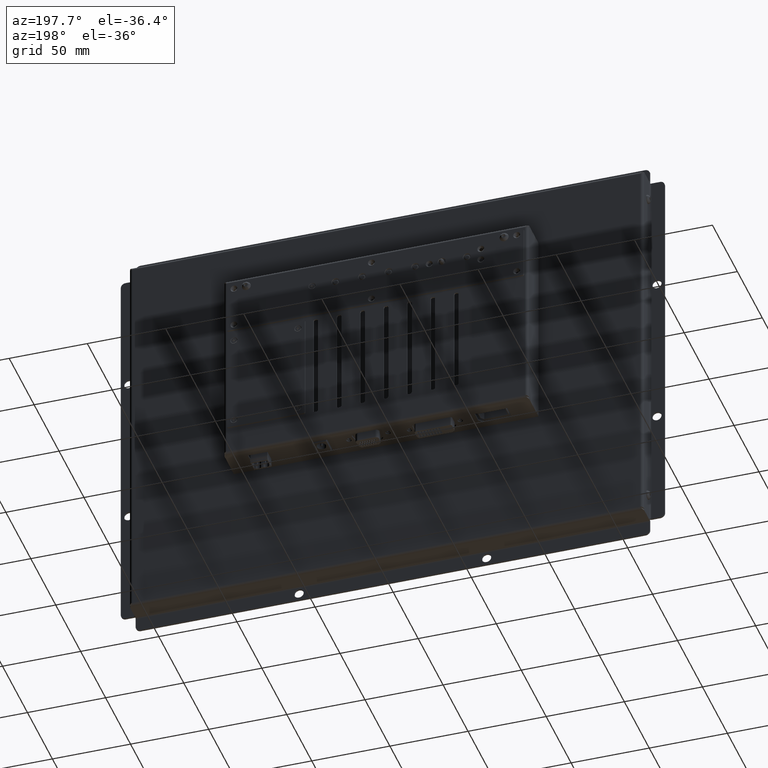
[diagram: clean part render]
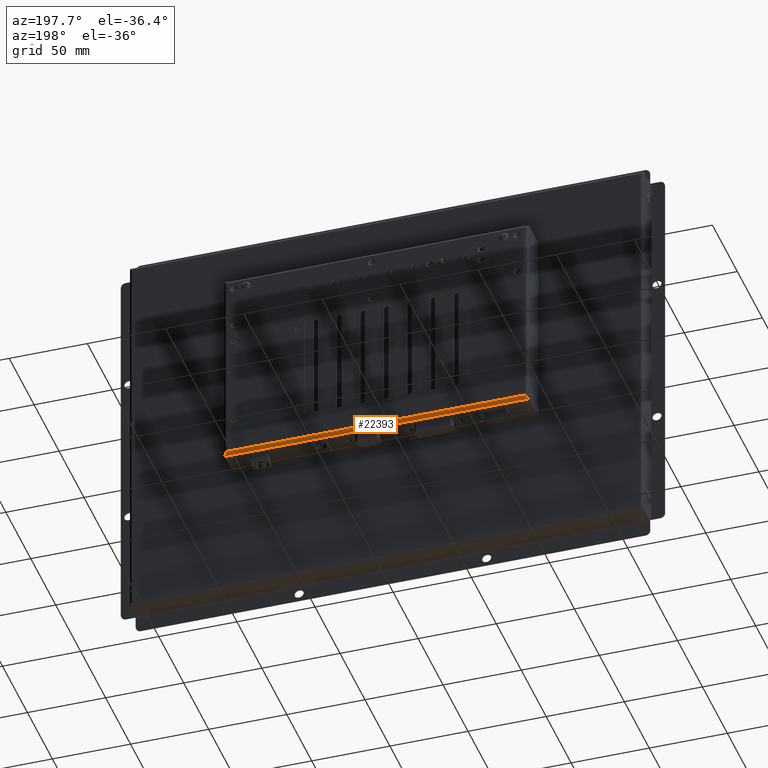
[diagram: same view with one face highlighted and labeled with its STEP entity id]
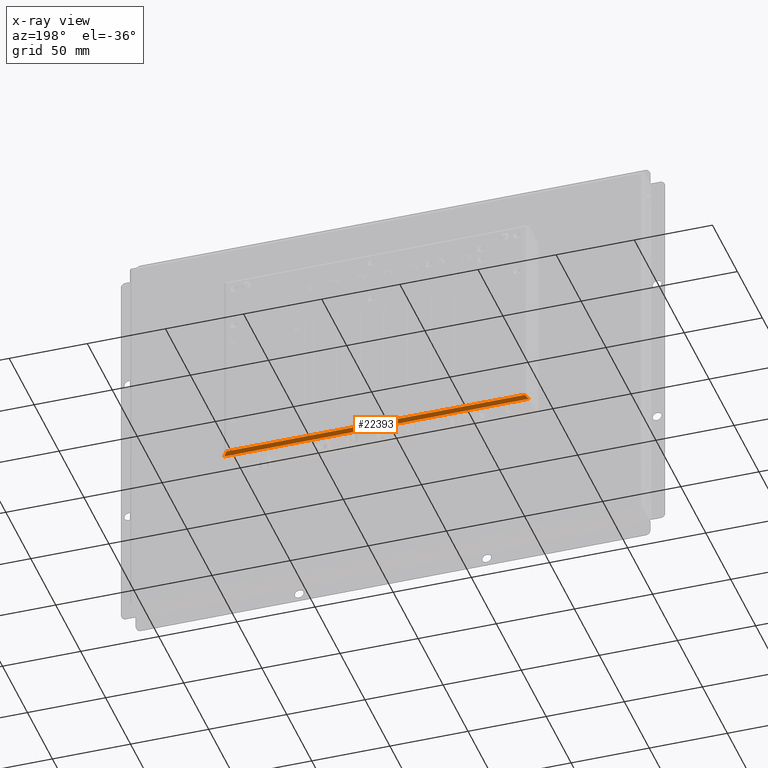
[diagram: x-ray of the same camera — body ghosted, the highlighted face saturated]
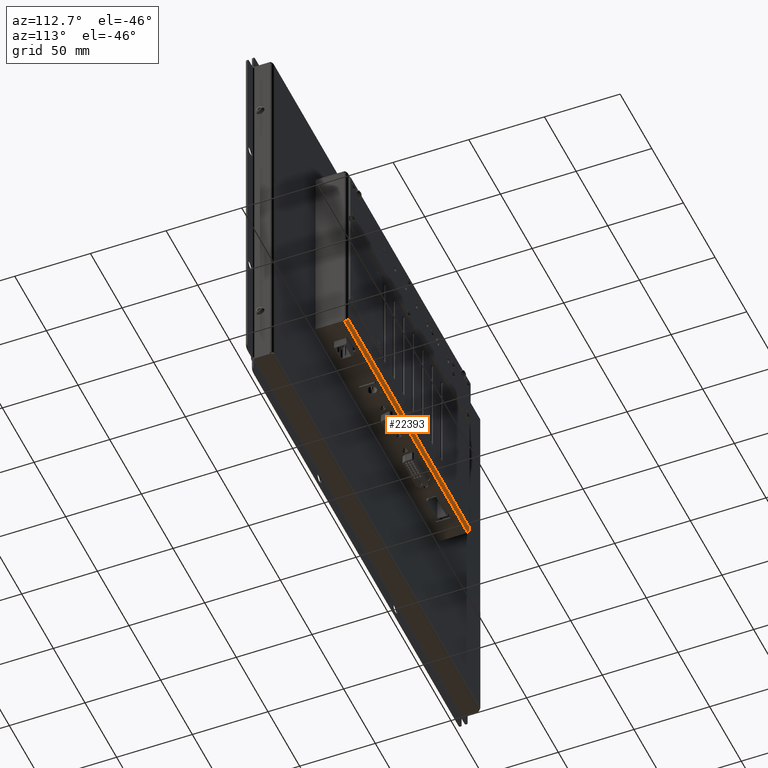
[diagram: same view with one face highlighted and labeled with its STEP entity id]
A machine part, auxiliary view. The second image highlights one B-rep face of the part: STEP entity #22393.
The next image is the same camera in x-ray: the body ghosted, the highlighted face saturated — about 0% of this face is hidden behind the body in this view.
A second angle (auxiliary view) of the same face is appended — the face is thin or edge-on in the first view.
In plain terms, the highlighted cylindrical surface (edge-blend (fillet) strip) has radius 2 mm, axis along (-1, 0, 0).
Its self-contained STEP definition (entity closure, byte-faithful):
#1341=B_SPLINE_CURVE_WITH_KNOTS('',3,(#38212,#38213,#38214,#38215,#38216,
#38217,#38218),.UNSPECIFIED.,.F.,.F.,(4,3,4),(-0.999999999999989,-0.571428571428568,
0.),.UNSPECIFIED.);
#1342=B_SPLINE_CURVE_WITH_KNOTS('',3,(#38220,#38221,#38222,#38223,#38224,
#38225,#38226),.UNSPECIFIED.,.F.,.F.,(4,3,4),(-0.999999999999989,-0.571428571428568,
0.),.UNSPECIFIED.);
#3203=FACE_OUTER_BOUND('',#4588,.T.);
#4588=EDGE_LOOP('',(#19381,#19382,#19383,#19384));
#6494=LINE('',#37762,#8346);
#6546=LINE('',#38227,#8398);
#8346=VECTOR('',#29070,10.);
#8398=VECTOR('',#29202,10.);
#11167=VERTEX_POINT('',#37759);
#11168=VERTEX_POINT('',#37761);
#11217=VERTEX_POINT('',#38211);
#11218=VERTEX_POINT('',#38219);
#13982=EDGE_CURVE('',#11167,#11168,#6494,.T.);
#14063=EDGE_CURVE('',#11168,#11217,#1341,.T.);
#14064=EDGE_CURVE('',#11167,#11218,#1342,.T.);
#14065=EDGE_CURVE('',#11217,#11218,#6546,.T.);
#19381=ORIENTED_EDGE('',*,*,#14063,.F.);
#19382=ORIENTED_EDGE('',*,*,#13982,.F.);
#19383=ORIENTED_EDGE('',*,*,#14064,.T.);
#19384=ORIENTED_EDGE('',*,*,#14065,.F.);
#21438=CYLINDRICAL_SURFACE('',#24404,2.);
#22393=ADVANCED_FACE('',(#3203),#21438,.T.);
#24404=AXIS2_PLACEMENT_3D('',#38210,#29200,#29201);
#29070=DIRECTION('',(-1.,-1.8256851286041E-19,3.35485923723702E-34));
#29200=DIRECTION('center_axis',(1.,0.,0.));
#29201=DIRECTION('ref_axis',(0.,0.,1.));
#29202=DIRECTION('',(1.,0.,0.));
#37759=CARTESIAN_POINT('',(-26.67547,-29.218324,-0.999999999999996));
#37761=CARTESIAN_POINT('',(-221.67547,-29.218324,-0.999999999999996));
#37762=CARTESIAN_POINT('',(-124.17547,-29.218324,-0.999999999999996));
#38210=CARTESIAN_POINT('Origin',(-76.42547,-27.218324,-1.));
#38211=CARTESIAN_POINT('',(-219.67547,-27.218324,1.));
#38212=CARTESIAN_POINT('Ctrl Pts',(-221.67547,-29.218324,-0.999999999999944));
#38213=CARTESIAN_POINT('Ctrl Pts',(-221.389755714287,-29.218324,-0.551201049486845));
#38214=CARTESIAN_POINT('Ctrl Pts',(-221.104041428572,-29.0616120306782,
-0.101625490999966));
#38215=CARTESIAN_POINT('Ctrl Pts',(-220.818327142856,-28.7817876147783,
0.247514067261048));
#38216=CARTESIAN_POINT('Ctrl Pts',(-220.437374761901,-28.4086883935784,
0.713033478275739));
#38217=CARTESIAN_POINT('Ctrl Pts',(-220.056422380944,-27.8167226006841,
1.));
#38218=CARTESIAN_POINT('Ctrl Pts',(-219.67547,-27.218324,1.));
#38219=CARTESIAN_POINT('',(-28.6754700000001,-27.218324,1.));
#38220=CARTESIAN_POINT('Ctrl Pts',(-26.6754700000001,-29.218324,-0.999999999999945));
#38221=CARTESIAN_POINT('Ctrl Pts',(-26.9611842857159,-29.218324,-0.551201049487264));
#38222=CARTESIAN_POINT('Ctrl Pts',(-27.2468985714303,-29.0617322618628,
-0.101481155726315));
#38223=CARTESIAN_POINT('Ctrl Pts',(-27.5326128571441,-28.7819250218464,
0.247679021859643));
#38224=CARTESIAN_POINT('Ctrl Pts',(-27.9135652380958,-28.4088487018245,
0.713225925307593));
#38225=CARTESIAN_POINT('Ctrl Pts',(-28.2945176190464,-27.8167226006839,
1.));
#38226=CARTESIAN_POINT('Ctrl Pts',(-28.6754700000001,-27.218324,1.));
#38227=CARTESIAN_POINT('',(-172.923213415467,-27.218324,1.));